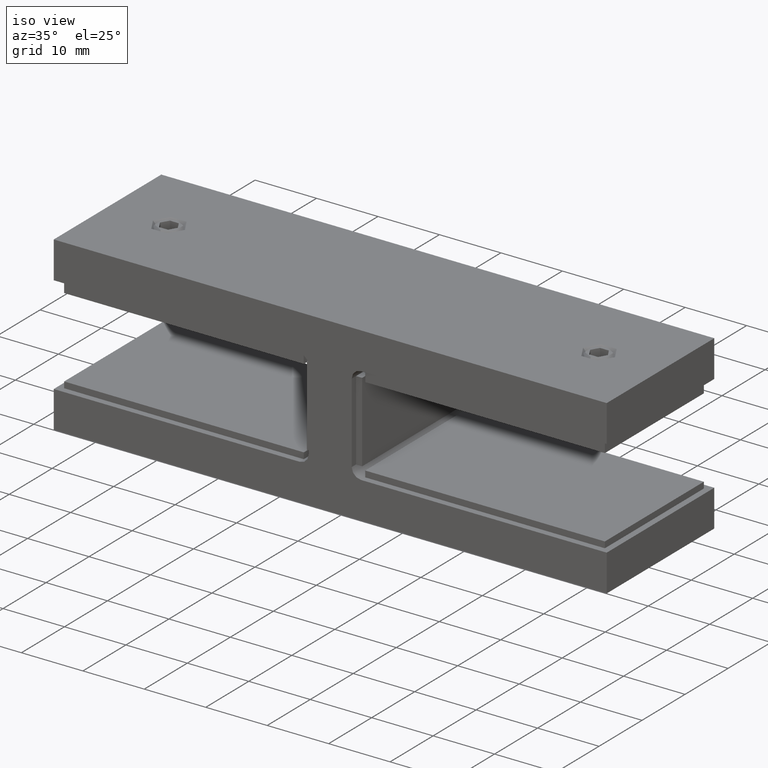
[diagram: clean part render]
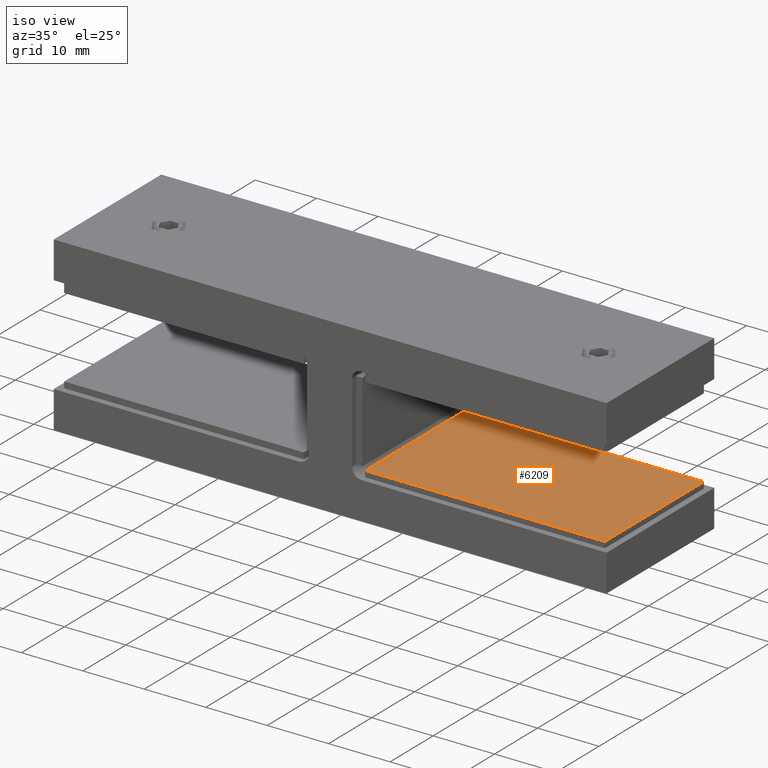
[diagram: same view with one face highlighted and labeled with its STEP entity id]
A machine part, iso view. The second image highlights one B-rep face of the part: STEP entity #6209.
In plain terms, the highlighted planar face has unit normal (0, 0, 1).
Its self-contained STEP definition (entity closure, byte-faithful):
#1066 = EDGE_CURVE ( 'NONE', #18917, #4810, #4486, .T. ) ;
#1540 = ORIENTED_EDGE ( 'NONE', *, *, #13431, .T. ) ;
#1836 = FACE_OUTER_BOUND ( 'NONE', #21014, .T. ) ;
#3154 = VECTOR ( 'NONE', #9405, 1000.000000000000000 ) ;
#3442 = VERTEX_POINT ( 'NONE', #7962 ) ;
#3501 = PLANE ( 'NONE',  #6312 ) ;
#3525 = LINE ( 'NONE', #7214, #15898 ) ;
#4343 = CARTESIAN_POINT ( 'NONE',  ( 19.49999999999998934, -11.50000000000000178, 0.5000000000000004441 ) ) ;
#4486 = LINE ( 'NONE', #13206, #15803 ) ;
#4810 = VERTEX_POINT ( 'NONE', #14596 ) ;
#6209 = ADVANCED_FACE ( 'NONE', ( #1836 ), #3501, .T. ) ;
#6312 = AXIS2_PLACEMENT_3D ( 'NONE', #15346, #10886, #8879 ) ;
#7214 = CARTESIAN_POINT ( 'NONE',  ( -19.50000000000000000, -11.50000000000000178, 0.5000000000000004441 ) ) ;
#7962 = CARTESIAN_POINT ( 'NONE',  ( -19.50000000000000000, -11.50000000000000178, 0.5000000000000004441 ) ) ;
#8429 = LINE ( 'NONE', #19587, #3154 ) ;
#8879 = DIRECTION ( 'NONE',  ( 1.000000000000000000, 0.000000000000000000, 0.000000000000000000 ) ) ;
#9380 = DIRECTION ( 'NONE',  ( -1.000000000000000000, -0.000000000000000000, -0.000000000000000000 ) ) ;
#9405 = DIRECTION ( 'NONE',  ( 0.000000000000000000, -1.000000000000000000, 0.000000000000000000 ) ) ;
#9496 = ORIENTED_EDGE ( 'NONE', *, *, #1066, .T. ) ;
#10886 = DIRECTION ( 'NONE',  ( -0.000000000000000000, 0.000000000000000000, 1.000000000000000000 ) ) ;
#12123 = CARTESIAN_POINT ( 'NONE',  ( -19.50000000000000000, 11.50000000000000000, 0.5000000000000004441 ) ) ;
#13103 = LINE ( 'NONE', #14355, #14414 ) ;
#13206 = CARTESIAN_POINT ( 'NONE',  ( 19.50000000000000355, 11.50000000000000000, 0.5000000000000004441 ) ) ;
#13431 = EDGE_CURVE ( 'NONE', #3442, #18917, #3525, .T. ) ;
#14355 = CARTESIAN_POINT ( 'NONE',  ( -19.50000000000000000, 11.50000000000000000, 0.5000000000000004441 ) ) ;
#14414 = VECTOR ( 'NONE', #9380, 1000.000000000000000 ) ;
#14596 = CARTESIAN_POINT ( 'NONE',  ( 19.50000000000000355, 11.50000000000000000, 0.5000000000000004441 ) ) ;
#14832 = DIRECTION ( 'NONE',  ( 1.508455196501571429E-16, 1.000000000000000000, -0.000000000000000000 ) ) ;
#15346 = CARTESIAN_POINT ( 'NONE',  ( 0.000000000000000000, 0.000000000000000000, 0.5000000000000004441 ) ) ;
#15361 = ORIENTED_EDGE ( 'NONE', *, *, #18275, .T. ) ;
#15803 = VECTOR ( 'NONE', #14832, 1000.000000000000000 ) ;
#15821 = DIRECTION ( 'NONE',  ( 1.000000000000000000, 0.000000000000000000, 0.000000000000000000 ) ) ;
#15898 = VECTOR ( 'NONE', #15821, 1000.000000000000000 ) ;
#18161 = VERTEX_POINT ( 'NONE', #12123 ) ;
#18275 = EDGE_CURVE ( 'NONE', #18161, #3442, #8429, .T. ) ;
#18917 = VERTEX_POINT ( 'NONE', #4343 ) ;
#19587 = CARTESIAN_POINT ( 'NONE',  ( -19.50000000000000000, 11.50000000000000000, 0.5000000000000004441 ) ) ;
#19627 = ORIENTED_EDGE ( 'NONE', *, *, #20561, .T. ) ;
#20561 = EDGE_CURVE ( 'NONE', #4810, #18161, #13103, .T. ) ;
#21014 = EDGE_LOOP ( 'NONE', ( #9496, #19627, #15361, #1540 ) ) ;